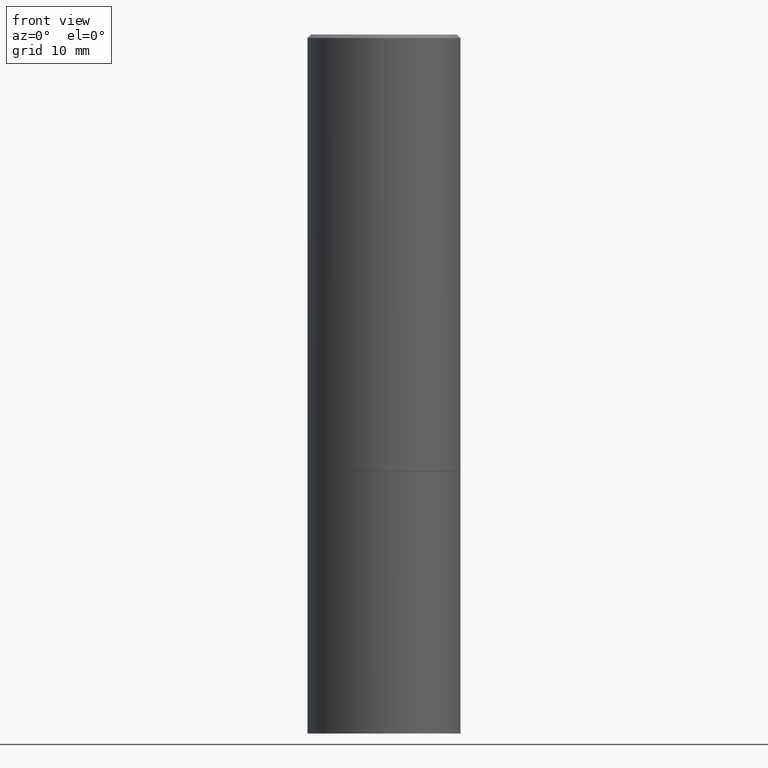
[diagram: clean part render]
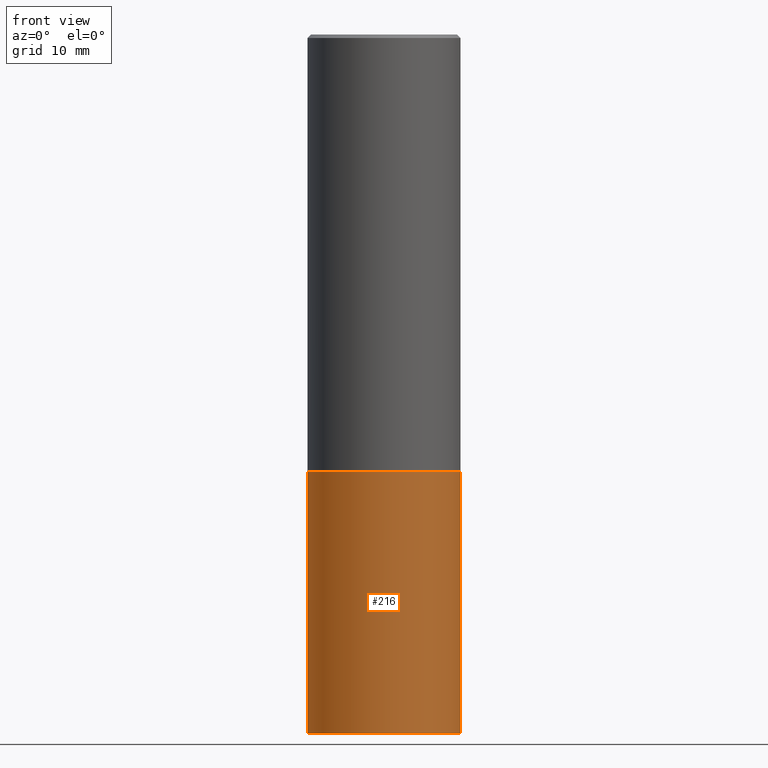
[diagram: same view with one face highlighted and labeled with its STEP entity id]
A machine part, front view. The second image highlights one B-rep face of the part: STEP entity #216.
In plain terms, the highlighted cylindrical surface (partial cylindrical patch) has radius 11.1125 mm, axis along (-0, 0, 1).
Its self-contained STEP definition (entity closure, byte-faithful):
#7 = CARTESIAN_POINT ( 'NONE',  ( 0.4375000000000000000, -3.055046171487741686E-15, 2.133327339410721769E-29 ) ) ;
#11 = FACE_OUTER_BOUND ( 'NONE', #43, .T. ) ;
#13 = CARTESIAN_POINT ( 'NONE',  ( -0.4375000000000000000, 3.108624468950438313E-15, -2.152034101986521245E-29 ) ) ;
#30 = AXIS2_PLACEMENT_3D ( 'NONE', #284, #127, #311 ) ;
#42 = DIRECTION ( 'NONE',  ( -2.445468806185136597E-29, 3.491481338843145583E-15, 1.000000000000000000 ) ) ;
#43 = EDGE_LOOP ( 'NONE', ( #238, #70, #187, #161 ) ) ;
#47 = CARTESIAN_POINT ( 'NONE',  ( 6.113672015462842613E-29, -8.728703347107864943E-15, -2.500000000000000000 ) ) ;
#56 = EDGE_CURVE ( 'NONE', #94, #319, #139, .T. ) ;
#57 = AXIS2_PLACEMENT_3D ( 'NONE', #47, #272, #135 ) ;
#58 = CARTESIAN_POINT ( 'NONE',  ( 0.4375000000000000000, -1.702097152686032402E-14, -4.000000000000000000 ) ) ;
#70 = ORIENTED_EDGE ( 'NONE', *, *, #176, .T. ) ;
#73 = CIRCLE ( 'NONE', #157, 0.4375000000000000000 ) ;
#87 = EDGE_CURVE ( 'NONE', #319, #253, #307, .T. ) ;
#88 = DIRECTION ( 'NONE',  ( 1.000000000000000000, -6.982962677686267499E-15, 0.000000000000000000 ) ) ;
#94 = VERTEX_POINT ( 'NONE', #224 ) ;
#102 = DIRECTION ( 'NONE',  ( -2.445468806185136877E-29, 3.491481338843145188E-15, 1.000000000000000000 ) ) ;
#127 = DIRECTION ( 'NONE',  ( -2.445468806185136597E-29, 3.491481338843145583E-15, 1.000000000000000000 ) ) ;
#135 = DIRECTION ( 'NONE',  ( 1.000000000000000000, -6.982962677686265133E-15, 0.000000000000000000 ) ) ;
#139 = LINE ( 'NONE', #13, #358 ) ;
#157 = AXIS2_PLACEMENT_3D ( 'NONE', #208, #42, #88 ) ;
#161 = ORIENTED_EDGE ( 'NONE', *, *, #87, .F. ) ;
#176 = EDGE_CURVE ( 'NONE', #94, #236, #73, .T. ) ;
#177 = CARTESIAN_POINT ( 'NONE',  ( 0.4375000000000000000, -1.178374951859560505E-14, -2.500000000000000000 ) ) ;
#184 = CARTESIAN_POINT ( 'NONE',  ( -0.4375000000000000000, -8.238689882289784535E-15, -2.500000000000000000 ) ) ;
#187 = ORIENTED_EDGE ( 'NONE', *, *, #225, .T. ) ;
#203 = VECTOR ( 'NONE', #235, 39.37007874015748143 ) ;
#206 = CYLINDRICAL_SURFACE ( 'NONE', #30, 0.4375000000000000000 ) ;
#208 = CARTESIAN_POINT ( 'NONE',  ( 9.781875224740546387E-29, -1.396592535537258233E-14, -4.000000000000000000 ) ) ;
#216 = ADVANCED_FACE ( 'NONE', ( #11 ), #206, .T. ) ;
#224 = CARTESIAN_POINT ( 'NONE',  ( -0.4375000000000000000, -8.238689882289784535E-15, -4.000000000000000000 ) ) ;
#225 = EDGE_CURVE ( 'NONE', #236, #253, #314, .T. ) ;
#235 = DIRECTION ( 'NONE',  ( -2.445468806185136877E-29, 3.491481338843145188E-15, 1.000000000000000000 ) ) ;
#236 = VERTEX_POINT ( 'NONE', #58 ) ;
#238 = ORIENTED_EDGE ( 'NONE', *, *, #56, .F. ) ;
#253 = VERTEX_POINT ( 'NONE', #177 ) ;
#272 = DIRECTION ( 'NONE',  ( -2.445468806185136597E-29, 3.491481338843145583E-15, 1.000000000000000000 ) ) ;
#284 = CARTESIAN_POINT ( 'NONE',  ( 0.000000000000000000, 0.000000000000000000, 0.000000000000000000 ) ) ;
#307 = CIRCLE ( 'NONE', #57, 0.4375000000000000000 ) ;
#311 = DIRECTION ( 'NONE',  ( 1.000000000000000000, -6.982962677686266711E-15, 4.876176775795935232E-29 ) ) ;
#314 = LINE ( 'NONE', #7, #203 ) ;
#319 = VERTEX_POINT ( 'NONE', #184 ) ;
#358 = VECTOR ( 'NONE', #102, 39.37007874015748143 ) ;